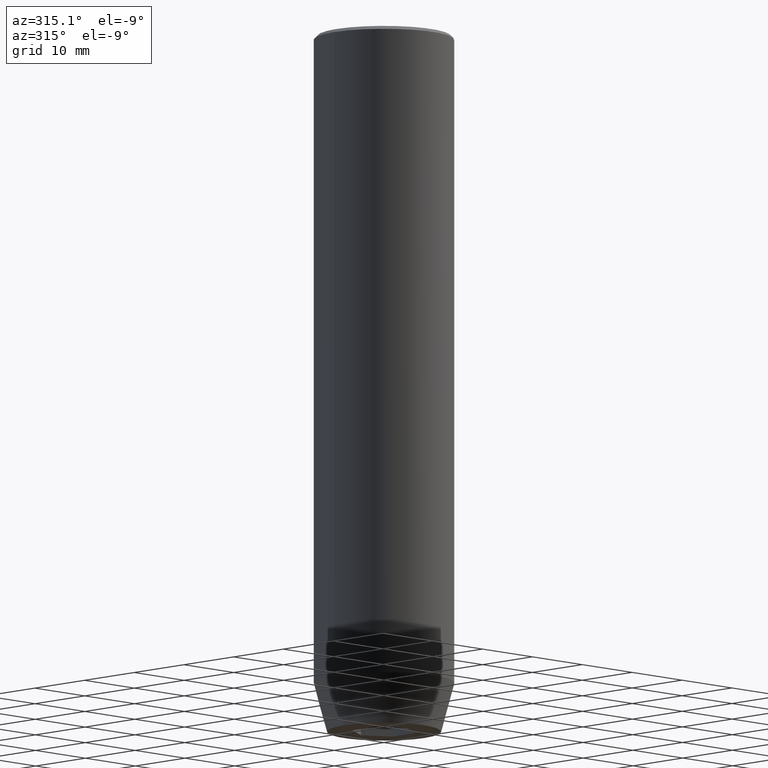
[diagram: clean part render]
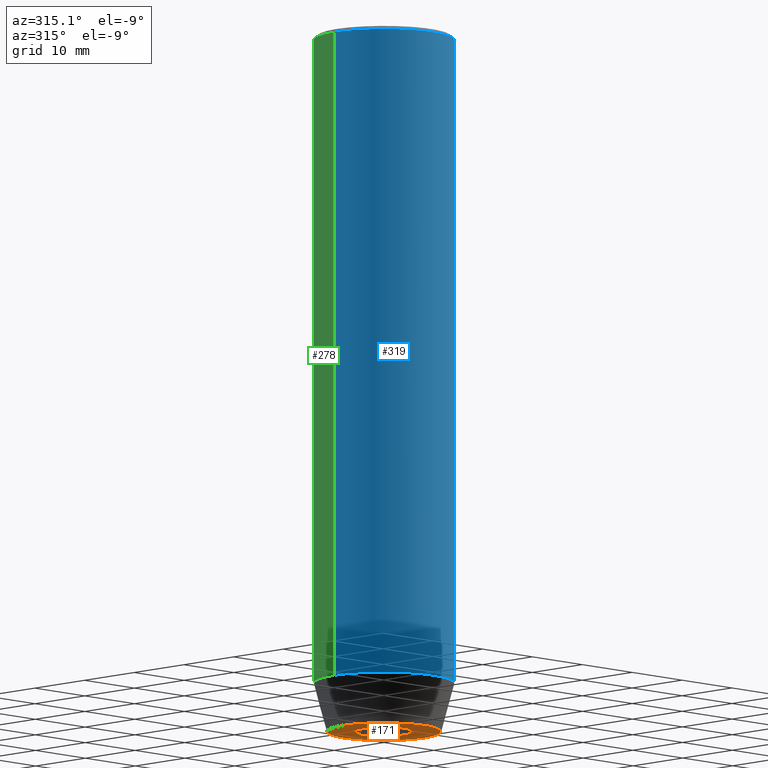
[diagram: same view with three faces highlighted in distinct colors, each labeled with its STEP entity id]
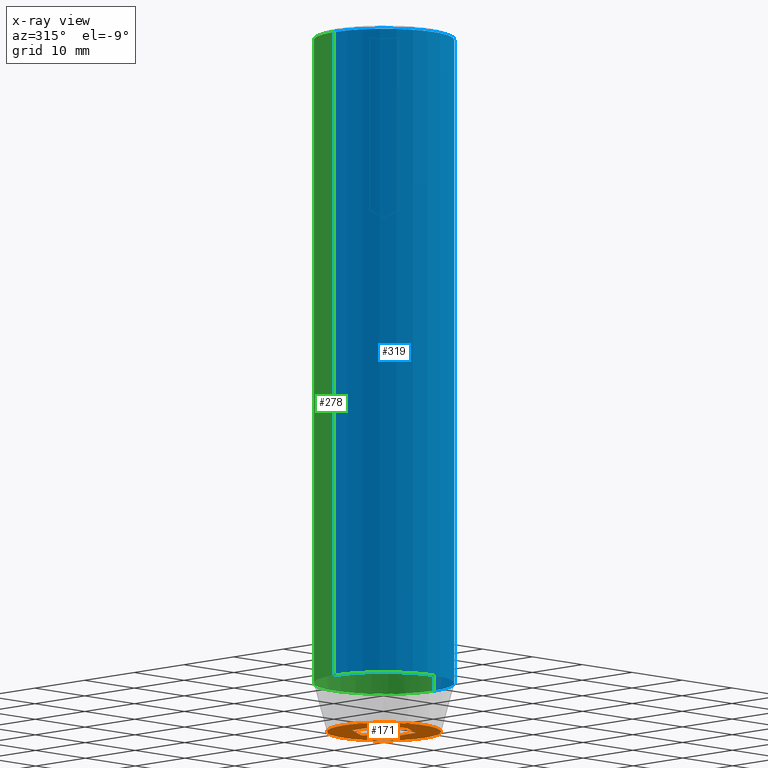
[diagram: x-ray of the same camera — body ghosted, the three highlighted faces saturated]
A machine part, auxiliary view with three faces highlighted in distinct colors.
The next image is the same camera in x-ray (body ghosted, the three faces saturated) — at least one of them is partly hidden behind the body in this view.
Their STEP definitions:

[orange] entity #171 — the highlighted planar face has unit normal (0, 0, -1).
#3 = EDGE_CURVE ( 'NONE', #294, #372, #199, .T. ) ;
#18 = CARTESIAN_POINT ( 'NONE',  ( 0.000000000000000000, 8.124355652982135467, -100.0000000000000000 ) ) ;
#20 = DIRECTION ( 'NONE',  ( -1.000000000000000000, 0.000000000000000000, -0.000000000000000000 ) ) ;
#23 = DIRECTION ( 'NONE',  ( -0.8660254037844384856, -0.5000000000000002220, 0.000000000000000000 ) ) ;
#25 = LINE ( 'NONE', #37, #45 ) ;
#28 = DIRECTION ( 'NONE',  ( 1.000000000000000000, 0.000000000000000000, 0.000000000000000000 ) ) ;
#29 = CARTESIAN_POINT ( 'NONE',  ( -4.000000000000000000, -2.309401076758503368, -100.0000000000000000 ) ) ;
#30 = ORIENTED_EDGE ( 'NONE', *, *, #195, .F. ) ;
#35 = ORIENTED_EDGE ( 'NONE', *, *, #238, .F. ) ;
#37 = CARTESIAN_POINT ( 'NONE',  ( -4.000000000000000000, 0.000000000000000000, -100.0000000000000000 ) ) ;
#45 = VECTOR ( 'NONE', #535, 1000.000000000000000 ) ;
#64 = CARTESIAN_POINT ( 'NONE',  ( -2.000000000000000000, 3.464101615137754830, -100.0000000000000000 ) ) ;
#69 = VECTOR ( 'NONE', #516, 1000.000000000000000 ) ;
#81 = CARTESIAN_POINT ( 'NONE',  ( 8.124355652982135467, 0.000000000000000000, -100.0000000000000000 ) ) ;
#99 = VERTEX_POINT ( 'NONE', #283 ) ;
#101 = CARTESIAN_POINT ( 'NONE',  ( 2.168404344971008868E-16, 4.618802153517005848, -100.0000000000000000 ) ) ;
#105 = EDGE_CURVE ( 'NONE', #372, #190, #151, .T. ) ;
#117 = CARTESIAN_POINT ( 'NONE',  ( -8.124355652982135467, 1.109796706851640556E-15, -100.0000000000000000 ) ) ;
#125 = DIRECTION ( 'NONE',  ( -0.000000000000000000, -0.000000000000000000, 1.000000000000000000 ) ) ;
#132 = ORIENTED_EDGE ( 'NONE', *, *, #449, .F. ) ;
#149 = FACE_BOUND ( 'NONE', #252, .T. ) ;
#151 = LINE ( 'NONE', #550, #69 ) ;
#156 = ORIENTED_EDGE ( 'NONE', *, *, #184, .F. ) ;
#171 = ADVANCED_FACE ( 'NONE', ( #149, #512 ), #423, .T. ) ;
#182 = CIRCLE ( 'NONE', #192, 8.124355652982135467 ) ;
#184 = EDGE_CURVE ( 'NONE', #190, #241, #223, .T. ) ;
#186 = DIRECTION ( 'NONE',  ( -0.8660254037844384856, 0.5000000000000002220, 0.000000000000000000 ) ) ;
#190 = VERTEX_POINT ( 'NONE', #350 ) ;
#192 = AXIS2_PLACEMENT_3D ( 'NONE', #210, #566, #479 ) ;
#195 = EDGE_CURVE ( 'NONE', #427, #294, #25, .T. ) ;
#198 = ORIENTED_EDGE ( 'NONE', *, *, #444, .F. ) ;
#199 = LINE ( 'NONE', #64, #354 ) ;
#203 = AXIS2_PLACEMENT_3D ( 'NONE', #18, #465, #20 ) ;
#210 = CARTESIAN_POINT ( 'NONE',  ( 0.000000000000000000, 0.000000000000000000, -100.0000000000000000 ) ) ;
#223 = LINE ( 'NONE', #337, #411 ) ;
#238 = EDGE_CURVE ( 'NONE', #507, #567, #408, .T. ) ;
#241 = VERTEX_POINT ( 'NONE', #482 ) ;
#252 = EDGE_LOOP ( 'NONE', ( #574, #30, #436, #198, #156, #301 ) ) ;
#283 = CARTESIAN_POINT ( 'NONE',  ( 4.336808689942017736E-16, -4.618802153517006737, -100.0000000000000000 ) ) ;
#294 = VERTEX_POINT ( 'NONE', #403 ) ;
#297 = LINE ( 'NONE', #522, #439 ) ;
#301 = ORIENTED_EDGE ( 'NONE', *, *, #105, .F. ) ;
#327 = CARTESIAN_POINT ( 'NONE',  ( -2.000000000000000888, -3.464101615137754386, -100.0000000000000000 ) ) ;
#337 = CARTESIAN_POINT ( 'NONE',  ( 4.000000000000000000, 0.000000000000000000, -100.0000000000000000 ) ) ;
#350 = CARTESIAN_POINT ( 'NONE',  ( 4.000000000000000000, 2.309401076758503368, -100.0000000000000000 ) ) ;
#354 = VECTOR ( 'NONE', #468, 999.9999999999998863 ) ;
#362 = EDGE_CURVE ( 'NONE', #99, #427, #418, .T. ) ;
#372 = VERTEX_POINT ( 'NONE', #101 ) ;
#403 = CARTESIAN_POINT ( 'NONE',  ( -4.000000000000000000, 2.309401076758503368, -100.0000000000000000 ) ) ;
#408 = CIRCLE ( 'NONE', #487, 8.124355652982135467 ) ;
#411 = VECTOR ( 'NONE', #428, 1000.000000000000000 ) ;
#418 = LINE ( 'NONE', #327, #572 ) ;
#421 = EDGE_LOOP ( 'NONE', ( #132, #35 ) ) ;
#423 = PLANE ( 'NONE',  #203 ) ;
#427 = VERTEX_POINT ( 'NONE', #29 ) ;
#428 = DIRECTION ( 'NONE',  ( 0.000000000000000000, -1.000000000000000000, 0.000000000000000000 ) ) ;
#436 = ORIENTED_EDGE ( 'NONE', *, *, #362, .F. ) ;
#438 = CARTESIAN_POINT ( 'NONE',  ( 0.000000000000000000, 0.000000000000000000, -100.0000000000000000 ) ) ;
#439 = VECTOR ( 'NONE', #23, 1000.000000000000114 ) ;
#444 = EDGE_CURVE ( 'NONE', #241, #99, #297, .T. ) ;
#449 = EDGE_CURVE ( 'NONE', #567, #507, #182, .T. ) ;
#465 = DIRECTION ( 'NONE',  ( 0.000000000000000000, 0.000000000000000000, -1.000000000000000000 ) ) ;
#468 = DIRECTION ( 'NONE',  ( 0.8660254037844387076, 0.5000000000000001110, 0.000000000000000000 ) ) ;
#479 = DIRECTION ( 'NONE',  ( 1.000000000000000000, 0.000000000000000000, 0.000000000000000000 ) ) ;
#482 = CARTESIAN_POINT ( 'NONE',  ( 4.000000000000000000, -2.309401076758502480, -100.0000000000000000 ) ) ;
#487 = AXIS2_PLACEMENT_3D ( 'NONE', #438, #125, #28 ) ;
#507 = VERTEX_POINT ( 'NONE', #117 ) ;
#512 = FACE_OUTER_BOUND ( 'NONE', #421, .T. ) ;
#516 = DIRECTION ( 'NONE',  ( 0.8660254037844385966, -0.5000000000000001110, 0.000000000000000000 ) ) ;
#522 = CARTESIAN_POINT ( 'NONE',  ( 2.000000000000000888, -3.464101615137754386, -100.0000000000000000 ) ) ;
#535 = DIRECTION ( 'NONE',  ( 0.000000000000000000, 1.000000000000000000, 0.000000000000000000 ) ) ;
#550 = CARTESIAN_POINT ( 'NONE',  ( 2.000000000000000444, 3.464101615137754386, -100.0000000000000000 ) ) ;
#566 = DIRECTION ( 'NONE',  ( -0.000000000000000000, -0.000000000000000000, 1.000000000000000000 ) ) ;
#567 = VERTEX_POINT ( 'NONE', #81 ) ;
#572 = VECTOR ( 'NONE', #186, 1000.000000000000114 ) ;
#574 = ORIENTED_EDGE ( 'NONE', *, *, #3, .F. ) ;

[blue] entity #319 — the highlighted cylindrical surface (partial cylindrical patch) has radius 10 mm, axis along (-0, -0, 1).
#31 = EDGE_CURVE ( 'NONE', #415, #201, #97, .T. ) ;
#32 = CARTESIAN_POINT ( 'NONE',  ( 10.00000000000000000, 0.000000000000000000, -0.4999999999999987232 ) ) ;
#60 = VECTOR ( 'NONE', #521, 1000.000000000000000 ) ;
#62 = CARTESIAN_POINT ( 'NONE',  ( 10.00000000000000000, 0.000000000000000000, -93.00000000000000000 ) ) ;
#66 = VERTEX_POINT ( 'NONE', #286 ) ;
#67 = LINE ( 'NONE', #323, #60 ) ;
#72 = EDGE_CURVE ( 'NONE', #66, #177, #67, .T. ) ;
#73 = CARTESIAN_POINT ( 'NONE',  ( 0.000000000000000000, 0.000000000000000000, -0.4999999999999987232 ) ) ;
#77 = ORIENTED_EDGE ( 'NONE', *, *, #546, .T. ) ;
#92 = FACE_OUTER_BOUND ( 'NONE', #557, .T. ) ;
#97 = LINE ( 'NONE', #379, #103 ) ;
#103 = VECTOR ( 'NONE', #455, 1000.000000000000000 ) ;
#120 = CARTESIAN_POINT ( 'NONE',  ( 0.000000000000000000, 0.000000000000000000, -93.00000000000000000 ) ) ;
#141 = CIRCLE ( 'NONE', #448, 10.00000000000000000 ) ;
#148 = ORIENTED_EDGE ( 'NONE', *, *, #429, .T. ) ;
#164 = CIRCLE ( 'NONE', #459, 10.00000000000000000 ) ;
#177 = VERTEX_POINT ( 'NONE', #202 ) ;
#201 = VERTEX_POINT ( 'NONE', #32 ) ;
#202 = CARTESIAN_POINT ( 'NONE',  ( -10.00000000000000000, 1.224646799147353256E-15, -0.4999999999999987232 ) ) ;
#205 = DIRECTION ( 'NONE',  ( 0.000000000000000000, 0.000000000000000000, -1.000000000000000000 ) ) ;
#216 = DIRECTION ( 'NONE',  ( -0.000000000000000000, -0.000000000000000000, 1.000000000000000000 ) ) ;
#240 = CYLINDRICAL_SURFACE ( 'NONE', #504, 10.00000000000000000 ) ;
#275 = DIRECTION ( 'NONE',  ( -0.000000000000000000, -0.000000000000000000, 1.000000000000000000 ) ) ;
#286 = CARTESIAN_POINT ( 'NONE',  ( -10.00000000000000000, 1.224646799147353256E-15, -93.00000000000000000 ) ) ;
#309 = ORIENTED_EDGE ( 'NONE', *, *, #31, .T. ) ;
#319 = ADVANCED_FACE ( 'NONE', ( #92 ), #240, .T. ) ;
#323 = CARTESIAN_POINT ( 'NONE',  ( -10.00000000000000000, 1.224646799147353256E-15, 0.000000000000000000 ) ) ;
#332 = DIRECTION ( 'NONE',  ( 1.000000000000000000, 0.000000000000000000, 0.000000000000000000 ) ) ;
#333 = ORIENTED_EDGE ( 'NONE', *, *, #72, .F. ) ;
#374 = CARTESIAN_POINT ( 'NONE',  ( 0.000000000000000000, 0.000000000000000000, 0.000000000000000000 ) ) ;
#379 = CARTESIAN_POINT ( 'NONE',  ( 10.00000000000000000, 0.000000000000000000, 0.000000000000000000 ) ) ;
#398 = DIRECTION ( 'NONE',  ( 1.000000000000000000, 0.000000000000000000, 0.000000000000000000 ) ) ;
#415 = VERTEX_POINT ( 'NONE', #62 ) ;
#429 = EDGE_CURVE ( 'NONE', #201, #177, #141, .T. ) ;
#448 = AXIS2_PLACEMENT_3D ( 'NONE', #73, #205, #332 ) ;
#453 = DIRECTION ( 'NONE',  ( 1.000000000000000000, 0.000000000000000000, 0.000000000000000000 ) ) ;
#455 = DIRECTION ( 'NONE',  ( -0.000000000000000000, -0.000000000000000000, 1.000000000000000000 ) ) ;
#459 = AXIS2_PLACEMENT_3D ( 'NONE', #120, #216, #398 ) ;
#504 = AXIS2_PLACEMENT_3D ( 'NONE', #374, #275, #453 ) ;
#521 = DIRECTION ( 'NONE',  ( -0.000000000000000000, -0.000000000000000000, 1.000000000000000000 ) ) ;
#546 = EDGE_CURVE ( 'NONE', #66, #415, #164, .T. ) ;
#557 = EDGE_LOOP ( 'NONE', ( #333, #77, #309, #148 ) ) ;

[green] entity #278 — the highlighted cylindrical surface (partial cylindrical patch) has radius 10 mm, axis along (-0, -0, 1).
#31 = EDGE_CURVE ( 'NONE', #415, #201, #97, .T. ) ;
#32 = CARTESIAN_POINT ( 'NONE',  ( 10.00000000000000000, 0.000000000000000000, -0.4999999999999987232 ) ) ;
#57 = DIRECTION ( 'NONE',  ( 0.000000000000000000, 0.000000000000000000, -1.000000000000000000 ) ) ;
#60 = VECTOR ( 'NONE', #521, 1000.000000000000000 ) ;
#62 = CARTESIAN_POINT ( 'NONE',  ( 10.00000000000000000, 0.000000000000000000, -93.00000000000000000 ) ) ;
#66 = VERTEX_POINT ( 'NONE', #286 ) ;
#67 = LINE ( 'NONE', #323, #60 ) ;
#72 = EDGE_CURVE ( 'NONE', #66, #177, #67, .T. ) ;
#75 = DIRECTION ( 'NONE',  ( 1.000000000000000000, 0.000000000000000000, 0.000000000000000000 ) ) ;
#88 = CIRCLE ( 'NONE', #495, 10.00000000000000000 ) ;
#95 = DIRECTION ( 'NONE',  ( -0.000000000000000000, -0.000000000000000000, 1.000000000000000000 ) ) ;
#97 = LINE ( 'NONE', #379, #103 ) ;
#103 = VECTOR ( 'NONE', #455, 1000.000000000000000 ) ;
#107 = ORIENTED_EDGE ( 'NONE', *, *, #72, .T. ) ;
#113 = ORIENTED_EDGE ( 'NONE', *, *, #31, .F. ) ;
#124 = ORIENTED_EDGE ( 'NONE', *, *, #366, .T. ) ;
#127 = AXIS2_PLACEMENT_3D ( 'NONE', #365, #57, #501 ) ;
#131 = FACE_OUTER_BOUND ( 'NONE', #526, .T. ) ;
#177 = VERTEX_POINT ( 'NONE', #202 ) ;
#200 = DIRECTION ( 'NONE',  ( 1.000000000000000000, 0.000000000000000000, 0.000000000000000000 ) ) ;
#201 = VERTEX_POINT ( 'NONE', #32 ) ;
#202 = CARTESIAN_POINT ( 'NONE',  ( -10.00000000000000000, 1.224646799147353256E-15, -0.4999999999999987232 ) ) ;
#239 = CIRCLE ( 'NONE', #127, 10.00000000000000000 ) ;
#246 = ORIENTED_EDGE ( 'NONE', *, *, #313, .T. ) ;
#278 = ADVANCED_FACE ( 'NONE', ( #131 ), #488, .T. ) ;
#286 = CARTESIAN_POINT ( 'NONE',  ( -10.00000000000000000, 1.224646799147353256E-15, -93.00000000000000000 ) ) ;
#313 = EDGE_CURVE ( 'NONE', #177, #201, #239, .T. ) ;
#323 = CARTESIAN_POINT ( 'NONE',  ( -10.00000000000000000, 1.224646799147353256E-15, 0.000000000000000000 ) ) ;
#365 = CARTESIAN_POINT ( 'NONE',  ( 0.000000000000000000, 0.000000000000000000, -0.4999999999999987232 ) ) ;
#366 = EDGE_CURVE ( 'NONE', #415, #66, #88, .T. ) ;
#379 = CARTESIAN_POINT ( 'NONE',  ( 10.00000000000000000, 0.000000000000000000, 0.000000000000000000 ) ) ;
#381 = AXIS2_PLACEMENT_3D ( 'NONE', #434, #477, #75 ) ;
#415 = VERTEX_POINT ( 'NONE', #62 ) ;
#434 = CARTESIAN_POINT ( 'NONE',  ( 0.000000000000000000, 0.000000000000000000, 0.000000000000000000 ) ) ;
#455 = DIRECTION ( 'NONE',  ( -0.000000000000000000, -0.000000000000000000, 1.000000000000000000 ) ) ;
#477 = DIRECTION ( 'NONE',  ( -0.000000000000000000, -0.000000000000000000, 1.000000000000000000 ) ) ;
#488 = CYLINDRICAL_SURFACE ( 'NONE', #381, 10.00000000000000000 ) ;
#495 = AXIS2_PLACEMENT_3D ( 'NONE', #510, #95, #200 ) ;
#501 = DIRECTION ( 'NONE',  ( 1.000000000000000000, 0.000000000000000000, 0.000000000000000000 ) ) ;
#510 = CARTESIAN_POINT ( 'NONE',  ( 0.000000000000000000, 0.000000000000000000, -93.00000000000000000 ) ) ;
#521 = DIRECTION ( 'NONE',  ( -0.000000000000000000, -0.000000000000000000, 1.000000000000000000 ) ) ;
#526 = EDGE_LOOP ( 'NONE', ( #124, #107, #246, #113 ) ) ;